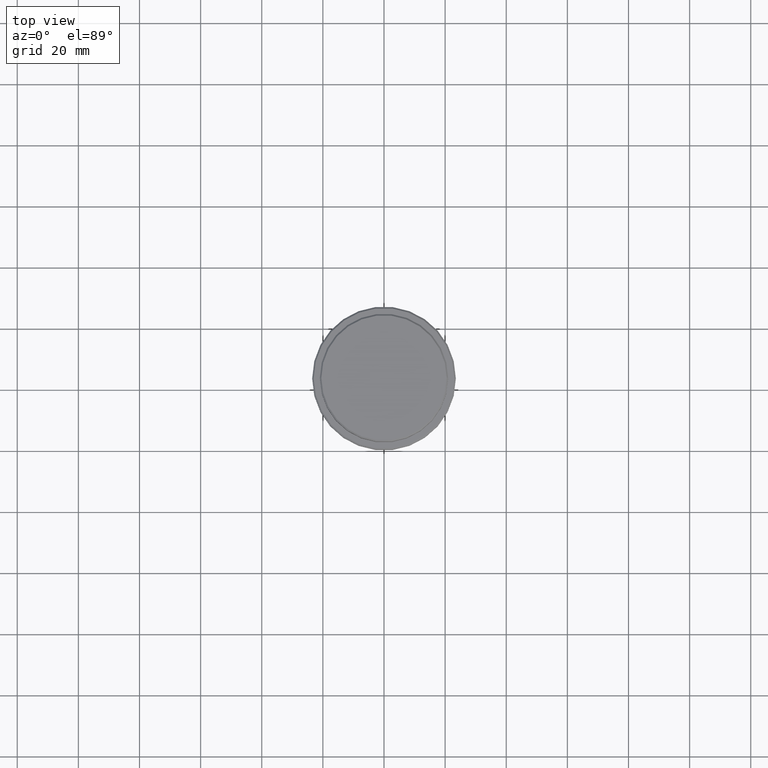
[diagram: clean part render]
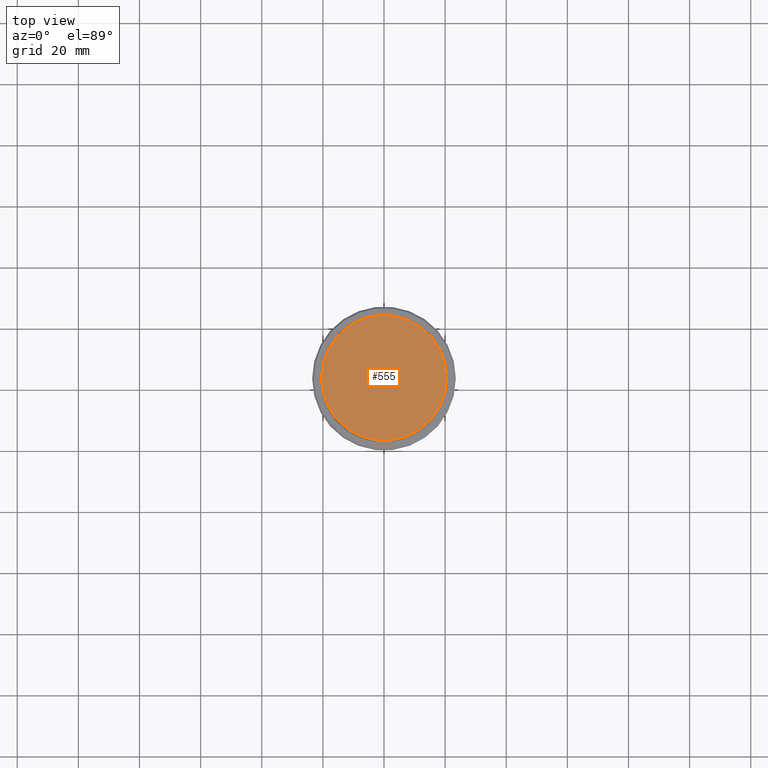
[diagram: same view with one face highlighted and labeled with its STEP entity id]
A machine part, top view. The second image highlights one B-rep face of the part: STEP entity #555.
In plain terms, the highlighted planar face has unit normal (0, -0, 1).
Its self-contained STEP definition (entity closure, byte-faithful):
#160 = CARTESIAN_POINT ( 'NONE',  ( 0.000000000000000000, 0.000000000000000000, 0.000000000000000000 ) ) ;
#168 = FACE_OUTER_BOUND ( 'NONE', #950, .T. ) ;
#296 = AXIS2_PLACEMENT_3D ( 'NONE', #160, #1034, #379 ) ;
#372 = PLANE ( 'NONE',  #1338 ) ;
#379 = DIRECTION ( 'NONE',  ( 1.000000000000000000, 0.000000000000000000, 0.000000000000000000 ) ) ;
#439 = DIRECTION ( 'NONE',  ( -0.000000000000000000, -0.000000000000000000, 1.000000000000000000 ) ) ;
#492 = CARTESIAN_POINT ( 'NONE',  ( 0.000000000000000000, 0.000000000000000000, 0.000000000000000000 ) ) ;
#515 = CARTESIAN_POINT ( 'NONE',  ( 20.50000000000001776, 2.541142108230758663E-15, 0.000000000000000000 ) ) ;
#528 = CIRCLE ( 'NONE', #296, 20.50000000000001776 ) ;
#555 = ADVANCED_FACE ( 'NONE', ( #168 ), #372, .T. ) ;
#572 = AXIS2_PLACEMENT_3D ( 'NONE', #1191, #439, #974 ) ;
#609 = EDGE_CURVE ( 'NONE', #824, #762, #528, .T. ) ;
#732 = CIRCLE ( 'NONE', #572, 20.50000000000001776 ) ;
#762 = VERTEX_POINT ( 'NONE', #515 ) ;
#802 = DIRECTION ( 'NONE',  ( 0.000000000000000000, -0.000000000000000000, 1.000000000000000000 ) ) ;
#824 = VERTEX_POINT ( 'NONE', #1387 ) ;
#873 = ORIENTED_EDGE ( 'NONE', *, *, #1282, .T. ) ;
#950 = EDGE_LOOP ( 'NONE', ( #1145, #873 ) ) ;
#974 = DIRECTION ( 'NONE',  ( 1.000000000000000000, 0.000000000000000000, 0.000000000000000000 ) ) ;
#1034 = DIRECTION ( 'NONE',  ( -0.000000000000000000, -0.000000000000000000, 1.000000000000000000 ) ) ;
#1145 = ORIENTED_EDGE ( 'NONE', *, *, #609, .T. ) ;
#1191 = CARTESIAN_POINT ( 'NONE',  ( 0.000000000000000000, 0.000000000000000000, 0.000000000000000000 ) ) ;
#1234 = DIRECTION ( 'NONE',  ( 1.000000000000000000, 0.000000000000000000, 0.000000000000000000 ) ) ;
#1282 = EDGE_CURVE ( 'NONE', #762, #824, #732, .T. ) ;
#1338 = AXIS2_PLACEMENT_3D ( 'NONE', #492, #802, #1234 ) ;
#1387 = CARTESIAN_POINT ( 'NONE',  ( -20.50000000000001776, 0.000000000000000000, 0.000000000000000000 ) ) ;